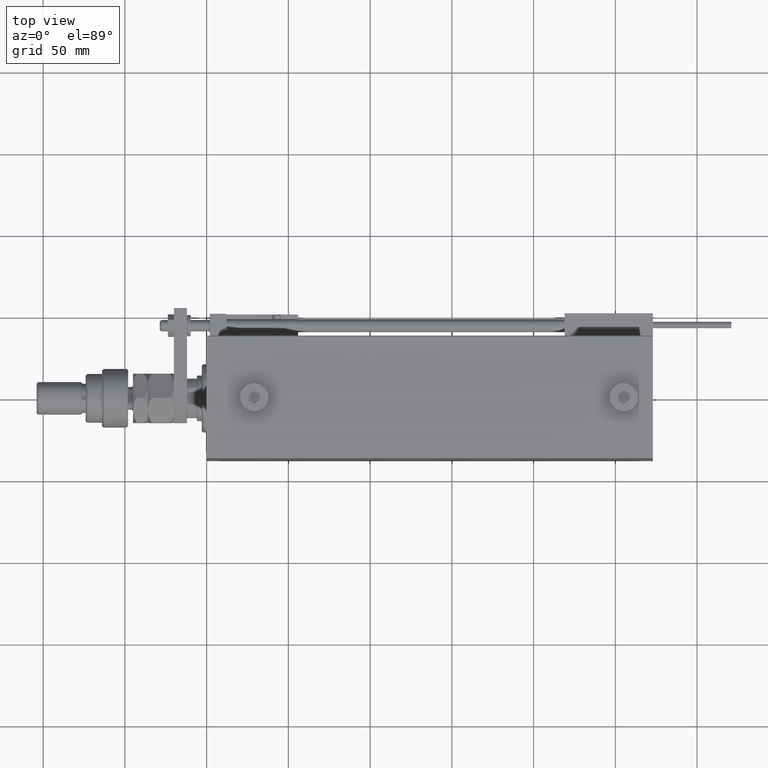
[diagram: clean part render]
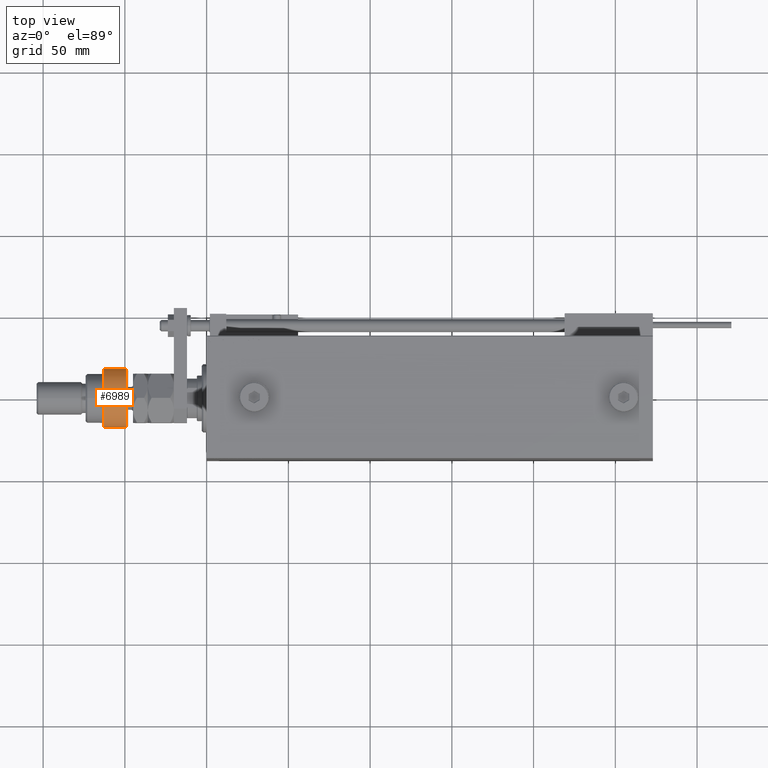
[diagram: same view with one face highlighted and labeled with its STEP entity id]
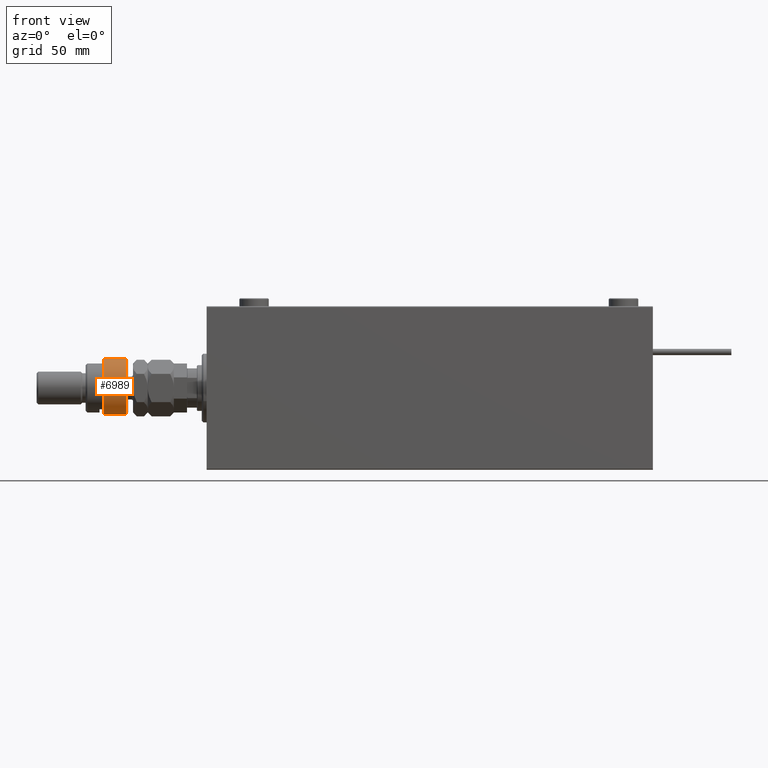
[diagram: same view with one face highlighted and labeled with its STEP entity id]
A machine part, top view. The second image highlights one B-rep face of the part: STEP entity #6989.
A second angle (front view) of the same face is appended — the face is thin or edge-on in the first view.
In plain terms, the highlighted cylindrical surface (edge-blend (fillet) strip) has radius 18 mm, axis along (1, -0, -0).
Its self-contained STEP definition (entity closure, byte-faithful):
#1744 = CARTESIAN_POINT ( 'NONE',  ( 0.000000000000000000, 0.000000000000000000, 1.000000000000011324 ) ) ;
#2283 = CARTESIAN_POINT ( 'NONE',  ( 0.000000000000000000, 0.000000000000000000, 16.00000000000000000 ) ) ;
#2337 = VERTEX_POINT ( 'NONE', #3926 ) ;
#3438 = VERTEX_POINT ( 'NONE', #18975 ) ;
#3926 = CARTESIAN_POINT ( 'NONE',  ( -16.36306817195357155, -7.500000000000000000, 1.000000000000011324 ) ) ;
#5132 = CARTESIAN_POINT ( 'NONE',  ( 0.000000000000000000, 0.000000000000000000, 1.000000000000011324 ) ) ;
#6158 = CARTESIAN_POINT ( 'NONE',  ( -16.36306817195357155, -7.500000000000000000, 14.99999999999999645 ) ) ;
#6989 = ADVANCED_FACE ( 'NONE', ( #39767 ), #35359, .T. ) ;
#8975 = EDGE_CURVE ( 'NONE', #37460, #2337, #11598, .T. ) ;
#9051 = LINE ( 'NONE', #20647, #28234 ) ;
#10153 = AXIS2_PLACEMENT_3D ( 'NONE', #1744, #22142, #51632 ) ;
#10451 = VERTEX_POINT ( 'NONE', #44286 ) ;
#11233 = ORIENTED_EDGE ( 'NONE', *, *, #36409, .T. ) ;
#11598 = LINE ( 'NONE', #41365, #36656 ) ;
#16970 = EDGE_LOOP ( 'NONE', ( #32778, #41522, #45856, #11233, #46438 ) ) ;
#18975 = CARTESIAN_POINT ( 'NONE',  ( -16.36306817195357155, 7.500000000000000000, 14.99999999999999645 ) ) ;
#18995 = EDGE_CURVE ( 'NONE', #39417, #10451, #49238, .T. ) ;
#20647 = CARTESIAN_POINT ( 'NONE',  ( -16.36306817195357155, 7.500000000000000000, 17.50000000000000000 ) ) ;
#21927 = DIRECTION ( 'NONE',  ( 1.000000000000000000, 0.000000000000000000, 0.000000000000000000 ) ) ;
#22086 = EDGE_CURVE ( 'NONE', #3438, #10451, #9051, .T. ) ;
#22142 = DIRECTION ( 'NONE',  ( -0.000000000000000000, -0.000000000000000000, 1.000000000000000000 ) ) ;
#22761 = EDGE_CURVE ( 'NONE', #3438, #37460, #27362, .T. ) ;
#27362 = CIRCLE ( 'NONE', #39717, 18.00000000000000000 ) ;
#28234 = VECTOR ( 'NONE', #34132, 1000.000000000000000 ) ;
#28407 = DIRECTION ( 'NONE',  ( -0.000000000000000000, -0.000000000000000000, -1.000000000000000000 ) ) ;
#29775 = CARTESIAN_POINT ( 'NONE',  ( 0.000000000000000000, 0.000000000000000000, 14.99999999999999645 ) ) ;
#30383 = CARTESIAN_POINT ( 'NONE',  ( 18.00000000000000000, 0.000000000000000000, 1.000000000000011324 ) ) ;
#32778 = ORIENTED_EDGE ( 'NONE', *, *, #22086, .F. ) ;
#33637 = DIRECTION ( 'NONE',  ( 1.000000000000000000, 0.000000000000000000, 0.000000000000000000 ) ) ;
#33924 = CIRCLE ( 'NONE', #10153, 18.00000000000000000 ) ;
#34132 = DIRECTION ( 'NONE',  ( -0.000000000000000000, -0.000000000000000000, -1.000000000000000000 ) ) ;
#35359 = CYLINDRICAL_SURFACE ( 'NONE', #47146, 18.00000000000000000 ) ;
#36409 = EDGE_CURVE ( 'NONE', #2337, #39417, #33924, .T. ) ;
#36656 = VECTOR ( 'NONE', #28407, 1000.000000000000000 ) ;
#37460 = VERTEX_POINT ( 'NONE', #6158 ) ;
#38642 = AXIS2_PLACEMENT_3D ( 'NONE', #5132, #39012, #21927 ) ;
#39012 = DIRECTION ( 'NONE',  ( -0.000000000000000000, -0.000000000000000000, 1.000000000000000000 ) ) ;
#39417 = VERTEX_POINT ( 'NONE', #30383 ) ;
#39717 = AXIS2_PLACEMENT_3D ( 'NONE', #29775, #50175, #33637 ) ;
#39767 = FACE_OUTER_BOUND ( 'NONE', #16970, .T. ) ;
#41365 = CARTESIAN_POINT ( 'NONE',  ( -16.36306817195357155, -7.500000000000000000, 17.50000000000000000 ) ) ;
#41522 = ORIENTED_EDGE ( 'NONE', *, *, #22761, .T. ) ;
#44286 = CARTESIAN_POINT ( 'NONE',  ( -16.36306817195357155, 7.500000000000000000, 1.000000000000011324 ) ) ;
#44456 = DIRECTION ( 'NONE',  ( -0.000000000000000000, -0.000000000000000000, -1.000000000000000000 ) ) ;
#45856 = ORIENTED_EDGE ( 'NONE', *, *, #8975, .T. ) ;
#46438 = ORIENTED_EDGE ( 'NONE', *, *, #18995, .T. ) ;
#47146 = AXIS2_PLACEMENT_3D ( 'NONE', #2283, #44456, #53263 ) ;
#49238 = CIRCLE ( 'NONE', #38642, 18.00000000000000000 ) ;
#50175 = DIRECTION ( 'NONE',  ( 0.000000000000000000, 0.000000000000000000, -1.000000000000000000 ) ) ;
#51632 = DIRECTION ( 'NONE',  ( 1.000000000000000000, 0.000000000000000000, 0.000000000000000000 ) ) ;
#53263 = DIRECTION ( 'NONE',  ( -1.000000000000000000, 0.000000000000000000, 0.000000000000000000 ) ) ;